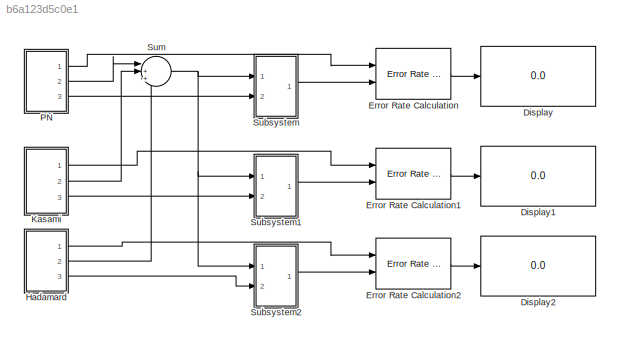
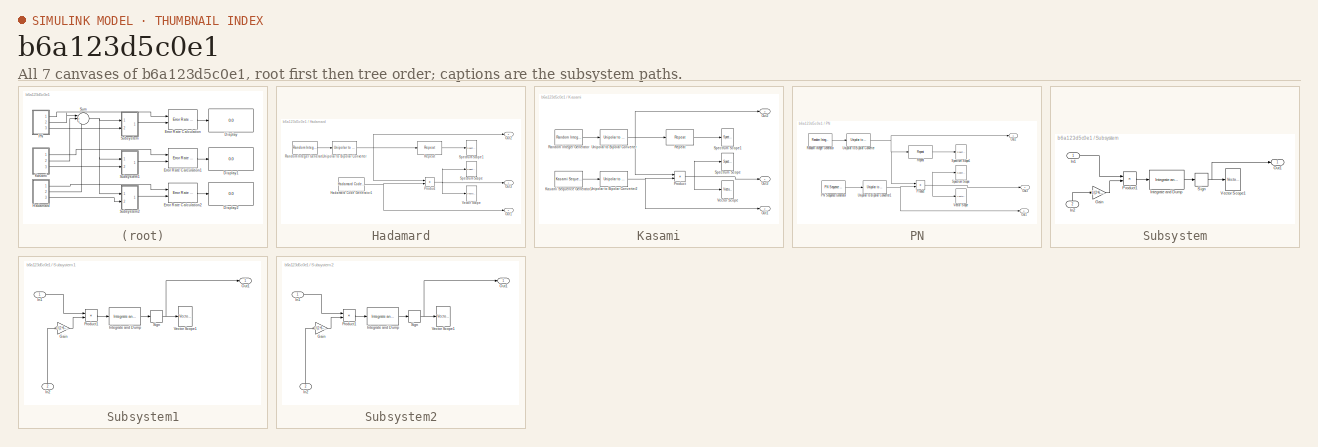
[diagram: thumbnail index - all 7 canvases of the model, root first then tree order]
MODEL slx_b6a123d5c0e1
KIND model
BLOCK [Display] Display
  Decimation = 1
  Lockdown = off
  Ports = [1]
BLOCK [Display] Display1
  Decimation = 1
  Lockdown = off
  Ports = [1]
BLOCK [Display] Display2
  Decimation = 1
  Lockdown = off
  Ports = [1]
BLOCK [Reference] Error Rate Calculation  REF=commsink2/Error Rate
Calculation
  N = 1
  PMode = Port
  Ports = [2, 1]
  RsMode2 = off
  SourceBlock = commsink2/Error Rate\nCalculation
  SourceType = Error Rate Calculation
  WsName = ErrorVec
  cp_mode = Entire frame
  maxBits = 1e6
  numErr = 100
  st_delay = 0
  stop = off
  subframe = []
BLOCK [Reference] Error Rate Calculation1  REF=commsink2/Error Rate
Calculation
  N = 1
  PMode = Port
  Ports = [2, 1]
  RsMode2 = off
  SourceBlock = commsink2/Error Rate\nCalculation
  SourceType = Error Rate Calculation
  WsName = ErrorVec
  cp_mode = Entire frame
  maxBits = 1e6
  numErr = 100
  st_delay = 0
  stop = off
  subframe = []
BLOCK [Reference] Error Rate Calculation2  REF=commsink2/Error Rate
Calculation
  N = 1
  PMode = Port
  Ports = [2, 1]
  RsMode2 = off
  SourceBlock = commsink2/Error Rate\nCalculation
  SourceType = Error Rate Calculation
  WsName = ErrorVec
  cp_mode = Entire frame
  maxBits = 1e6
  numErr = 100
  st_delay = 0
  stop = off
  subframe = []
BLOCK [SubSystem] Hadamard
  FunctionWithSeparateData = off
  MaskHideContents = off
  MinAlgLoopOccurrences = off
  Opaque = off
  Ports = [0, 3]
  PropExecContextOutsideSubsystem = off
  RTWSystemCode = Auto
  RequestExecContextInheritance = off
BLOCK [Reference] Hadamard/Hadamard Code Generator1  REF=commseqgen2/Hadamard
Code Generator
  Ports = [0, 1]
  SourceBlock = commseqgen2/Hadamard\nCode Generator
  SourceType = Hadamard Code Generator
  frameBased = off
  index = 52
  length = 128
  outDataType = double
  sampPerFrame = 128
  ts = 10^-6/128
BLOCK [Outport] Hadamard/Out1
  IconDisplay = Port number
  Port = 2
BLOCK [Outport] Hadamard/Out2
  IconDisplay = Port number
  Port = 3
BLOCK [Outport] Hadamard/Out3
  IconDisplay = Port number
BLOCK [Product] Hadamard/Product
  InputSameDT = off
  OutDataTypeStr = Inherit: Inherit via internal rule
  Ports = [2, 1]
  SaturateOnIntegerOverflow = off
BLOCK [Reference] Hadamard/Random Integer Generator  REF=commrandsrc2/Random Integer
Generator
  Ports = [0, 1]
  SourceBlock = commrandsrc2/Random Integer\nGenerator
  SourceType = Random Integer Generator
  Ts = 10^-6
  frameBased = off
  mul = 2
  orient = off
  outDataType = double
  sampPerFrame = 1
  seed = 41
BLOCK [Reference] Hadamard/Repeat  REF=dspsigops/Repeat
  InputProcessing = Columns as channels (frame based)
  N = 2^6-1
  Ports = [1, 1]
  RateOptions = Allow multirate processing
  SourceBlock = dspsigops/Repeat
  SourceType = Repeat
  UserDataPersistent = on
  ic = 0
  mode = Unused parameter value
BLOCK [Reference] Hadamard/Spectrum Scope  REF=dspsnks4/Spectrum
Scope
  AxisGrid = on
  AxisLegend = off
  AxisProperties = off
  AxisZoom = off
  BufferSize = 128
  DisplayProperties = off
  Domain = Frequency
  FFTlength = 128
  FigPos = get(0,'defaultfigureposition')
  FrameNumber = on
  HorizSpan = 1
  InheritXIncr = on
  LineProperties = off
  Memory = off
  OpenScopeAtSimStart = on
  OpenScopeImmediately = off
  Overlap = 0
  Ports = [1]
  RsSpecScope = 50
  ScopeProperties = on
  SourceBlock = dspsnks4/Spectrum\nScope
  SourceType = Spectrum Scope
  TreatMby1Signals = One channel
  UseBuffer = on
  XAxisParamsVer = 6.9
  XDisplay = 0
  XIncr = 1.0
  XLabel = Samples
  XLimit = Auto
  XMax = 1
  XMin = 0
  XRange = Two-sided ((-Fs/2...Fs/2])
  XUnits = Hertz
  YLabel = Magnitude-squared, dB
  YMax = 10
  YMin = -10
  YUnits = dBW/Hertz
  betaSpecScope = 5
  inpFftLenInherit = on
  isFrameUpgraded = on
  numAvg = 20
  winsampSpecScope = Periodic
  wintypeSpecScope = Hann
BLOCK [Reference] Hadamard/Spectrum Scope1  REF=dspsnks4/Spectrum
Scope
  AxisGrid = on
  AxisLegend = off
  AxisProperties = off
  AxisZoom = off
  BufferSize = 128
  DisplayProperties = off
  Domain = Frequency
  FFTlength = 128
  FigPos = get(0,'defaultfigureposition')
  FrameNumber = on
  HorizSpan = 1
  InheritXIncr = on
  LineProperties = off
  Memory = off
  OpenScopeAtSimStart = on
  OpenScopeImmediately = off
  Overlap = 0
  Ports = [1]
  RsSpecScope = 50
  ScopeProperties = on
  SourceBlock = dspsnks4/Spectrum\nScope
  SourceType = Spectrum Scope
  TreatMby1Signals = One channel
  UseBuffer = on
  XAxisParamsVer = 6.9
  XDisplay = 0
  XIncr = 1.0
  XLabel = Samples
  XLimit = Auto
  XMax = 1
  XMin = 0
  XRange = Two-sided ((-Fs/2...Fs/2])
  XUnits = Hertz
  YLabel = Magnitude-squared, dB
  YMax = 10
  YMin = -10
  YUnits = dBW/Hertz
  betaSpecScope = 5
  inpFftLenInherit = on
  isFrameUpgraded = on
  numAvg = 20
  winsampSpecScope = Periodic
  wintypeSpecScope = Hann
BLOCK [Reference] Hadamard/Unipolar to Bipolar Converter  REF=commutil2/Unipolar to
Bipolar
Converter
  M = 2
  Ports = [1, 1]
  SourceBlock = commutil2/Unipolar to\nBipolar\nConverter
  SourceType = Unipolar to Bipolar Converter
  dataType = Inherit via internal rule
  polarity = Positive
BLOCK [Reference] Hadamard/Vector Scope  REF=dspsnks4/Vector
Scope
  AxisGrid = on
  AxisLegend = off
  AxisProperties = off
  AxisZoom = off
  DisplayProperties = off
  Domain = Time
  FigPos = get(0,'defaultfigureposition')
  FrameNumber = on
  HorizSpan = 3*((2^6)-1)
  InheritXIncr = on
  LineMarkers = o
  LineProperties = off
  LineStyles = None
  Memory = off
  OpenScopeAtSimStart = on
  OpenScopeImmediately = off
  Ports = [1]
  ScopeProperties = on
  ShowPortLabels = off
  SourceBlock = dspsnks4/Vector\nScope
  SourceType = Vector Scope
  XAxisParamsVer = 6.9
  XIncr = 1
  XLabel = Time
  XLimit = Auto
  XMax = 1
  XMin = 0
  XRange = [0...Fs/2]
  XStart = 0
  XUnits = Hertz
  YLabel = Amplitude
  YMax = 10
  YMin = -10
  YUnits = dB
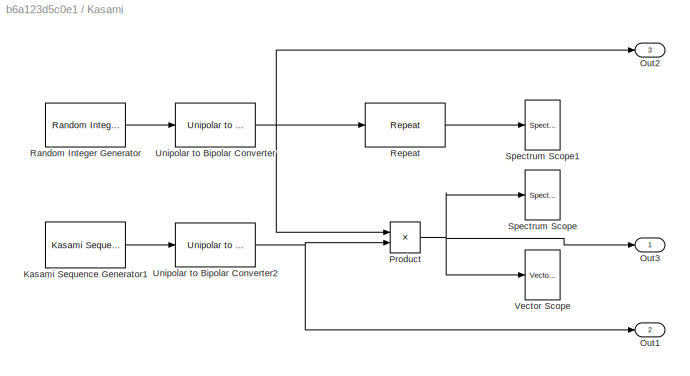
BLOCK [SubSystem] Kasami
  FunctionWithSeparateData = off
  MaskHideContents = off
  MinAlgLoopOccurrences = off
  Opaque = off
  Ports = [0, 3]
  PropExecContextOutsideSubsystem = off
  RTWSystemCode = Auto
  RequestExecContextInheritance = off
BLOCK [Reference] Kasami/Kasami Sequence Generator1  REF=commseqgen2/Kasami
Sequence
Generator
  Commented = on
  Ports = [0, 1]
  SourceBlock = commseqgen2/Kasami\nSequence\nGenerator
  SourceType = Kasami Sequence Generator
  codeIdx = 1
  frameBased = off
  genPoly = [1 0 0 0 0 1 1]
  iniState = [0 0 0 0 0 1]
  maxOutSize = [10 1]
  maxOutSizeMode = Dialog parameter
  outDataType = double
  outVarSiz = off
  reset = off
  sampPerFrame = 1
  shift = 0
  ts = 1
BLOCK [Outport] Kasami/Out1
  IconDisplay = Port number
  Port = 2
BLOCK [Outport] Kasami/Out2
  IconDisplay = Port number
  Port = 3
BLOCK [Outport] Kasami/Out3
  IconDisplay = Port number
BLOCK [Product] Kasami/Product
  InputSameDT = off
  OutDataTypeStr = Inherit: Inherit via internal rule
  Ports = [2, 1]
  SaturateOnIntegerOverflow = off
BLOCK [Reference] Kasami/Random Integer Generator  REF=commrandsrc2/Random Integer
Generator
  Ports = [0, 1]
  SourceBlock = commrandsrc2/Random Integer\nGenerator
  SourceType = Random Integer Generator
  Ts = 10^-6
  frameBased = off
  mul = 2
  orient = off
  outDataType = double
  sampPerFrame = 1
  seed = 41
BLOCK [Reference] Kasami/Repeat  REF=dspsigops/Repeat
  InputProcessing = Columns as channels (frame based)
  N = 2^6-1
  Ports = [1, 1]
  RateOptions = Allow multirate processing
  SourceBlock = dspsigops/Repeat
  SourceType = Repeat
  UserDataPersistent = on
  ic = 0
  mode = Unused parameter value
BLOCK [Reference] Kasami/Spectrum Scope  REF=dspsnks4/Spectrum
Scope
  AxisGrid = on
  AxisLegend = off
  AxisProperties = off
  AxisZoom = off
  BufferSize = 128
  DisplayProperties = off
  Domain = Frequency
  FFTlength = 128
  FigPos = get(0,'defaultfigureposition')
  FrameNumber = on
  HorizSpan = 1
  InheritXIncr = on
  LineProperties = off
  Memory = off
  OpenScopeAtSimStart = on
  OpenScopeImmediately = off
  Overlap = 0
  Ports = [1]
  RsSpecScope = 50
  ScopeProperties = on
  SourceBlock = dspsnks4/Spectrum\nScope
  SourceType = Spectrum Scope
  TreatMby1Signals = One channel
  UseBuffer = on
  XAxisParamsVer = 6.9
  XDisplay = 0
  XIncr = 1.0
  XLabel = Samples
  XLimit = Auto
  XMax = 1
  XMin = 0
  XRange = Two-sided ((-Fs/2...Fs/2])
  XUnits = Hertz
  YLabel = Magnitude-squared, dB
  YMax = 10
  YMin = -10
  YUnits = dBW/Hertz
  betaSpecScope = 5
  inpFftLenInherit = on
  isFrameUpgraded = on
  numAvg = 20
  winsampSpecScope = Periodic
  wintypeSpecScope = Hann
BLOCK [Reference] Kasami/Spectrum Scope1  REF=dspsnks4/Spectrum
Scope
  AxisGrid = on
  AxisLegend = off
  AxisProperties = off
  AxisZoom = off
  BufferSize = 128
  DisplayProperties = off
  Domain = Frequency
  FFTlength = 128
  FigPos = get(0,'defaultfigureposition')
  FrameNumber = on
  HorizSpan = 1
  InheritXIncr = on
  LineProperties = off
  Memory = off
  OpenScopeAtSimStart = on
  OpenScopeImmediately = off
  Overlap = 0
  Ports = [1]
  RsSpecScope = 50
  ScopeProperties = on
  SourceBlock = dspsnks4/Spectrum\nScope
  SourceType = Spectrum Scope
  TreatMby1Signals = One channel
  UseBuffer = on
  XAxisParamsVer = 6.9
  XDisplay = 0
  XIncr = 1.0
  XLabel = Samples
  XLimit = Auto
  XMax = 1
  XMin = 0
  XRange = Two-sided ((-Fs/2...Fs/2])
  XUnits = Hertz
  YLabel = Magnitude-squared, dB
  YMax = 10
  YMin = -10
  YUnits = dBW/Hertz
  betaSpecScope = 5
  inpFftLenInherit = on
  isFrameUpgraded = on
  numAvg = 20
  winsampSpecScope = Periodic
  wintypeSpecScope = Hann
BLOCK [Reference] Kasami/Unipolar to Bipolar Converter  REF=commutil2/Unipolar to
Bipolar
Converter
  M = 2
  Ports = [1, 1]
  SourceBlock = commutil2/Unipolar to\nBipolar\nConverter
  SourceType = Unipolar to Bipolar Converter
  dataType = Inherit via internal rule
  polarity = Positive
BLOCK [Reference] Kasami/Unipolar to Bipolar Converter2  REF=commutil2/Unipolar to
Bipolar
Converter
  Commented = on
  M = 2
  Ports = [1, 1]
  SourceBlock = commutil2/Unipolar to\nBipolar\nConverter
  SourceType = Unipolar to Bipolar Converter
  dataType = Inherit via internal rule
  polarity = Positive
BLOCK [Reference] Kasami/Vector Scope  REF=dspsnks4/Vector
Scope
  AxisGrid = on
  AxisLegend = off
  AxisProperties = off
  AxisZoom = off
  DisplayProperties = off
  Domain = Time
  FigPos = get(0,'defaultfigureposition')
  FrameNumber = on
  HorizSpan = 3*((2^6)-1)
  InheritXIncr = on
  LineMarkers = o
  LineProperties = off
  LineStyles = None
  Memory = off
  OpenScopeAtSimStart = on
  OpenScopeImmediately = off
  Ports = [1]
  ScopeProperties = on
  ShowPortLabels = off
  SourceBlock = dspsnks4/Vector\nScope
  SourceType = Vector Scope
  XAxisParamsVer = 6.9
  XIncr = 1
  XLabel = Time
  XLimit = Auto
  XMax = 1
  XMin = 0
  XRange = [0...Fs/2]
  XStart = 0
  XUnits = Hertz
  YLabel = Amplitude
  YMax = 10
  YMin = -10
  YUnits = dB
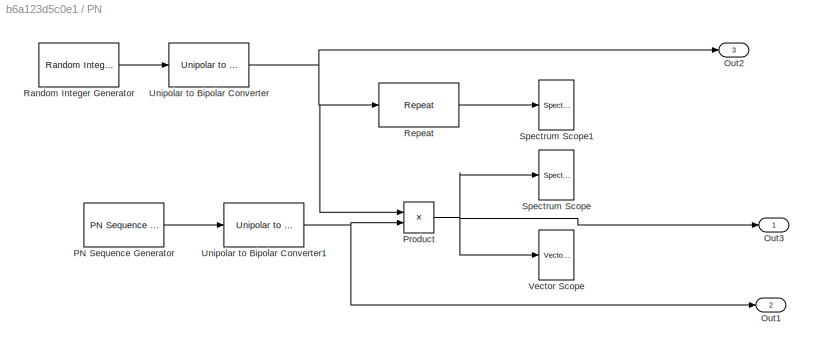
BLOCK [SubSystem] PN
  FunctionWithSeparateData = off
  MaskHideContents = off
  MinAlgLoopOccurrences = off
  Opaque = off
  Ports = [0, 3]
  PropExecContextOutsideSubsystem = off
  RTWSystemCode = Auto
  RequestExecContextInheritance = off
BLOCK [Outport] PN/Out1
  IconDisplay = Port number
  Port = 2
BLOCK [Outport] PN/Out2
  IconDisplay = Port number
  Port = 3
BLOCK [Outport] PN/Out3
  IconDisplay = Port number
BLOCK [Reference] PN/PN Sequence Generator  REF=commseqgen2/PN Sequence
Generator
  Ports = [0, 1]
  SourceBlock = commseqgen2/PN Sequence\nGenerator
  SourceType = PN Sequence Generator
  Ts = (10^-6)/((2^6)-1)
  bitPackDataSigned = off
  bitPackedOutDType = double
  bitPackedOutputs = off
  frameBased = off
  ini_sta = [0 0 0 0 0 1]
  maxOutSize = [10 1]
  maxOutSizeMode = Dialog parameter
  numPackedBits = 8
  outBitMaskSource = Dialog parameter
  outDataType = double
  outVarSiz = off
  poly = [1 1 0 0 0 0 1]
  reset = off
  sampPerFrame = 1
  shift = 0
BLOCK [Product] PN/Product
  InputSameDT = off
  OutDataTypeStr = Inherit: Inherit via internal rule
  Ports = [2, 1]
  SaturateOnIntegerOverflow = off
BLOCK [Reference] PN/Random Integer Generator  REF=commrandsrc2/Random Integer
Generator
  Ports = [0, 1]
  SourceBlock = commrandsrc2/Random Integer\nGenerator
  SourceType = Random Integer Generator
  Ts = 10^-6
  frameBased = off
  mul = 2
  orient = off
  outDataType = double
  sampPerFrame = 1
  seed = 41
BLOCK [Reference] PN/Repeat  REF=dspsigops/Repeat
  InputProcessing = Columns as channels (frame based)
  N = 2^6-1
  Ports = [1, 1]
  RateOptions = Allow multirate processing
  SourceBlock = dspsigops/Repeat
  SourceType = Repeat
  UserDataPersistent = on
  ic = 0
  mode = Unused parameter value
BLOCK [Reference] PN/Spectrum Scope  REF=dspsnks4/Spectrum
Scope
  AxisGrid = on
  AxisLegend = off
  AxisProperties = off
  AxisZoom = off
  BufferSize = 128
  DisplayProperties = off
  Domain = Frequency
  FFTlength = 128
  FigPos = get(0,'defaultfigureposition')
  FrameNumber = on
  HorizSpan = 1
  InheritXIncr = on
  LineProperties = off
  Memory = off
  OpenScopeAtSimStart = on
  OpenScopeImmediately = off
  Overlap = 0
  Ports = [1]
  RsSpecScope = 50
  ScopeProperties = on
  SourceBlock = dspsnks4/Spectrum\nScope
  SourceType = Spectrum Scope
  TreatMby1Signals = One channel
  UseBuffer = on
  XAxisParamsVer = 6.9
  XDisplay = 0
  XIncr = 1.0
  XLabel = Samples
  XLimit = Auto
  XMax = 1
  XMin = 0
  XRange = Two-sided ((-Fs/2...Fs/2])
  XUnits = Hertz
  YLabel = Magnitude-squared, dB
  YMax = 10
  YMin = -10
  YUnits = dBW/Hertz
  betaSpecScope = 5
  inpFftLenInherit = on
  isFrameUpgraded = on
  numAvg = 20
  winsampSpecScope = Periodic
  wintypeSpecScope = Hann
BLOCK [Reference] PN/Spectrum Scope1  REF=dspsnks4/Spectrum
Scope
  AxisGrid = on
  AxisLegend = off
  AxisProperties = off
  AxisZoom = off
  BufferSize = 128
  DisplayProperties = off
  Domain = Frequency
  FFTlength = 128
  FigPos = get(0,'defaultfigureposition')
  FrameNumber = on
  HorizSpan = 1
  InheritXIncr = on
  LineProperties = off
  Memory = off
  OpenScopeAtSimStart = on
  OpenScopeImmediately = off
  Overlap = 0
  Ports = [1]
  RsSpecScope = 50
  ScopeProperties = on
  SourceBlock = dspsnks4/Spectrum\nScope
  SourceType = Spectrum Scope
  TreatMby1Signals = One channel
  UseBuffer = on
  XAxisParamsVer = 6.9
  XDisplay = 0
  XIncr = 1.0
  XLabel = Samples
  XLimit = Auto
  XMax = 1
  XMin = 0
  XRange = Two-sided ((-Fs/2...Fs/2])
  XUnits = Hertz
  YLabel = Magnitude-squared, dB
  YMax = 10
  YMin = -10
  YUnits = dBW/Hertz
  betaSpecScope = 5
  inpFftLenInherit = on
  isFrameUpgraded = on
  numAvg = 20
  winsampSpecScope = Periodic
  wintypeSpecScope = Hann
BLOCK [Reference] PN/Unipolar to Bipolar Converter  REF=commutil2/Unipolar to
Bipolar
Converter
  M = 2
  Ports = [1, 1]
  SourceBlock = commutil2/Unipolar to\nBipolar\nConverter
  SourceType = Unipolar to Bipolar Converter
  dataType = Inherit via internal rule
  polarity = Positive
BLOCK [Reference] PN/Unipolar to Bipolar Converter1  REF=commutil2/Unipolar to
Bipolar
Converter
  M = 2
  Ports = [1, 1]
  SourceBlock = commutil2/Unipolar to\nBipolar\nConverter
  SourceType = Unipolar to Bipolar Converter
  dataType = Inherit via internal rule
  polarity = Positive
BLOCK [Reference] PN/Vector Scope  REF=dspsnks4/Vector
Scope
  AxisGrid = on
  AxisLegend = off
  AxisProperties = off
  AxisZoom = off
  DisplayProperties = off
  Domain = Time
  FigPos = get(0,'defaultfigureposition')
  FrameNumber = on
  HorizSpan = 3*((2^6)-1)
  InheritXIncr = on
  LineMarkers = o
  LineProperties = off
  LineStyles = None
  Memory = off
  OpenScopeAtSimStart = on
  OpenScopeImmediately = off
  Ports = [1]
  ScopeProperties = on
  ShowPortLabels = off
  SourceBlock = dspsnks4/Vector\nScope
  SourceType = Vector Scope
  XAxisParamsVer = 6.9
  XIncr = 1
  XLabel = Time
  XLimit = Auto
  XMax = 1
  XMin = 0
  XRange = [0...Fs/2]
  XStart = 0
  XUnits = Hertz
  YLabel = Amplitude
  YMax = 10
  YMin = -10
  YUnits = dB
BLOCK [SubSystem] Subsystem
  Commented = on
  FunctionWithSeparateData = off
  MaskHideContents = off
  MinAlgLoopOccurrences = off
  Opaque = off
  Ports = [2, 1]
  PropExecContextOutsideSubsystem = off
  RTWSystemCode = Auto
  RequestExecContextInheritance = off
BLOCK [Gain] Subsystem/Gain
  Gain = 1/(2^6-1)
  OutDataTypeStr = Inherit: Inherit via internal rule
  ParamDataTypeStr = Inherit: Inherit via internal rule
  SaturateOnIntegerOverflow = off
BLOCK [Inport] Subsystem/In1
  IconDisplay = Port number
BLOCK [Inport] Subsystem/In2
  IconDisplay = Port number
  Port = 2
BLOCK [Reference] Subsystem/Integrate and Dump  REF=commfilt2/Integrate
and Dump
  LockScale = off
  Ports = [1, 1]
  SourceBlock = commfilt2/Integrate\nand Dump
  SourceType = Integrate and Dump
  accumFracLength = 30
  accumMode = Inherit via internal rule
  accumWordLength = 32
  nodump = off
  obssamples = 63
  offsetsamples = 0
  outputFracLength = 30
  outputMode = Same as accumulator
  outputWordLength = 32
  overflowMode = off
  roundingMode = Floor
BLOCK [Outport] Subsystem/Out1
  IconDisplay = Port number
BLOCK [Product] Subsystem/Product1
  InputSameDT = off
  OutDataTypeStr = Inherit: Inherit via internal rule
  Ports = [2, 1]
  SaturateOnIntegerOverflow = off
BLOCK [Signum] Subsystem/Sign
  ZeroCross = off
BLOCK [Reference] Subsystem/Vector Scope1  REF=dspsnks4/Vector
Scope
  AxisGrid = on
  AxisLegend = off
  AxisProperties = off
  AxisZoom = off
  DisplayProperties = off
  Domain = Time
  FigPos = get(0,'defaultfigureposition')
  FrameNumber = on
  HorizSpan = 3*((2^6)-1)
  InheritXIncr = on
  LineColors = b
  LineMarkers = o
  LineProperties = off
  LineStyles = None
  Memory = off
  OpenScopeAtSimStart = on
  OpenScopeImmediately = off
  Ports = [1]
  ScopeProperties = on
  ShowPortLabels = off
  SourceBlock = dspsnks4/Vector\nScope
  SourceType = Vector Scope
  XAxisParamsVer = 6.9
  XIncr = 1
  XLabel = Time
  XLimit = Auto
  XMax = 1
  XMin = 0
  XRange = [0...Fs/2]
  XStart = 0
  XUnits = Hertz
  YLabel = Amplitude
  YMax = 10
  YMin = -10
  YUnits = dB
BLOCK [SubSystem] Subsystem1
  FunctionWithSeparateData = off
  MaskHideContents = off
  MinAlgLoopOccurrences = off
  Opaque = off
  Ports = [2, 1]
  PropExecContextOutsideSubsystem = off
  RTWSystemCode = Auto
  RequestExecContextInheritance = off
BLOCK [Gain] Subsystem1/Gain
  Gain = 1/(2^6-1)
  OutDataTypeStr = Inherit: Inherit via internal rule
  ParamDataTypeStr = Inherit: Inherit via internal rule
  SaturateOnIntegerOverflow = off
BLOCK [Inport] Subsystem1/In1
  IconDisplay = Port number
BLOCK [Inport] Subsystem1/In2
  IconDisplay = Port number
  Port = 2
BLOCK [Reference] Subsystem1/Integrate and Dump  REF=commfilt2/Integrate
and Dump
  LockScale = off
  Ports = [1, 1]
  SourceBlock = commfilt2/Integrate\nand Dump
  SourceType = Integrate and Dump
  accumFracLength = 30
  accumMode = Inherit via internal rule
  accumWordLength = 32
  nodump = off
  obssamples = 63
  offsetsamples = 0
  outputFracLength = 30
  outputMode = Same as accumulator
  outputWordLength = 32
  overflowMode = off
  roundingMode = Floor
BLOCK [Outport] Subsystem1/Out1
  IconDisplay = Port number
BLOCK [Product] Subsystem1/Product1
  InputSameDT = off
  OutDataTypeStr = Inherit: Inherit via internal rule
  Ports = [2, 1]
  SaturateOnIntegerOverflow = off
BLOCK [Signum] Subsystem1/Sign
  ZeroCross = off
BLOCK [Reference] Subsystem1/Vector Scope1  REF=dspsnks4/Vector
Scope
  AxisGrid = on
  AxisLegend = off
  AxisProperties = off
  AxisZoom = off
  DisplayProperties = off
  Domain = Time
  FigPos = get(0,'defaultfigureposition')
  FrameNumber = on
  HorizSpan = 3*((2^6)-1)
  InheritXIncr = on
  LineColors = b
  LineMarkers = o
  LineProperties = off
  LineStyles = None
  Memory = off
  OpenScopeAtSimStart = on
  OpenScopeImmediately = off
  Ports = [1]
  ScopeProperties = on
  ShowPortLabels = off
  SourceBlock = dspsnks4/Vector\nScope
  SourceType = Vector Scope
  XAxisParamsVer = 6.9
  XIncr = 1
  XLabel = Time
  XLimit = Auto
  XMax = 1
  XMin = 0
  XRange = [0...Fs/2]
  XStart = 0
  XUnits = Hertz
  YLabel = Amplitude
  YMax = 10
  YMin = -10
  YUnits = dB
BLOCK [SubSystem] Subsystem2
  FunctionWithSeparateData = off
  MaskHideContents = off
  MinAlgLoopOccurrences = off
  Opaque = off
  Ports = [2, 1]
  PropExecContextOutsideSubsystem = off
  RTWSystemCode = Auto
  RequestExecContextInheritance = off
BLOCK [Gain] Subsystem2/Gain
  Gain = 1/(2^6-1)
  OutDataTypeStr = Inherit: Inherit via internal rule
  ParamDataTypeStr = Inherit: Inherit via internal rule
  SaturateOnIntegerOverflow = off
BLOCK [Inport] Subsystem2/In1
  IconDisplay = Port number
BLOCK [Inport] Subsystem2/In2
  IconDisplay = Port number
  Port = 2
BLOCK [Reference] Subsystem2/Integrate and Dump  REF=commfilt2/Integrate
and Dump
  LockScale = off
  Ports = [1, 1]
  SourceBlock = commfilt2/Integrate\nand Dump
  SourceType = Integrate and Dump
  accumFracLength = 30
  accumMode = Inherit via internal rule
  accumWordLength = 32
  nodump = off
  obssamples = 128
  offsetsamples = 0
  outputFracLength = 30
  outputMode = Same as accumulator
  outputWordLength = 32
  overflowMode = off
  roundingMode = Floor
BLOCK [Outport] Subsystem2/Out1
  IconDisplay = Port number
BLOCK [Product] Subsystem2/Product1
  InputSameDT = off
  OutDataTypeStr = Inherit: Inherit via internal rule
  Ports = [2, 1]
  SaturateOnIntegerOverflow = off
BLOCK [Signum] Subsystem2/Sign
  ZeroCross = off
BLOCK [Reference] Subsystem2/Vector Scope1  REF=dspsnks4/Vector
Scope
  AxisGrid = on
  AxisLegend = off
  AxisProperties = off
  AxisZoom = off
  DisplayProperties = off
  Domain = Time
  FigPos = get(0,'defaultfigureposition')
  FrameNumber = on
  HorizSpan = 3*((2^6)-1)
  InheritXIncr = on
  LineColors = b
  LineMarkers = o
  LineProperties = off
  LineStyles = None
  Memory = off
  OpenScopeAtSimStart = on
  OpenScopeImmediately = off
  Ports = [1]
  ScopeProperties = on
  ShowPortLabels = off
  SourceBlock = dspsnks4/Vector\nScope
  SourceType = Vector Scope
  XAxisParamsVer = 6.9
  XIncr = 1
  XLabel = Time
  XLimit = Auto
  XMax = 1
  XMin = 0
  XRange = [0...Fs/2]
  XStart = 0
  XUnits = Hertz
  YLabel = Amplitude
  YMax = 10
  YMin = -10
  YUnits = dB
BLOCK [Sum] Sum
  IconShape = round
  InputSameDT = off
  Inputs = |+++
  OutDataTypeStr = Inherit: Inherit via internal rule
  Ports = [3, 1]
  SaturateOnIntegerOverflow = off
LINE Error Rate Calculation1:1 -> Display1:1
LINE Error Rate Calculation2:1 -> Display2:1
LINE Error Rate Calculation:1 -> Display:1
NET Hadamard/Hadamard Code Generator1:1 -> Hadamard/Out1:1, Hadamard/Product:2
NET Hadamard/Product:1 -> Hadamard/Out3:1, Hadamard/Spectrum Scope:1, Hadamard/Vector Scope:1
LINE Hadamard/Random Integer Generator:1 -> Hadamard/Unipolar to Bipolar Converter:1
LINE Hadamard/Repeat:1 -> Hadamard/Spectrum Scope1:1
NET Hadamard/Unipolar to Bipolar Converter:1 -> Hadamard/Out2:1, Hadamard/Product:1, Hadamard/Repeat:1
LINE Hadamard:1 -> Error Rate Calculation2:1
LINE Hadamard:2 -> Sum:3
LINE Hadamard:3 -> Subsystem2:2
LINE Kasami/Kasami Sequence Generator1:1 -> Kasami/Unipolar to Bipolar Converter2:1
NET Kasami/Product:1 -> Kasami/Out3:1, Kasami/Spectrum Scope:1, Kasami/Vector Scope:1
LINE Kasami/Random Integer Generator:1 -> Kasami/Unipolar to Bipolar Converter:1
LINE Kasami/Repeat:1 -> Kasami/Spectrum Scope1:1
NET Kasami/Unipolar to Bipolar Converter2:1 -> Kasami/Out1:1, Kasami/Product:2
NET Kasami/Unipolar to Bipolar Converter:1 -> Kasami/Out2:1, Kasami/Product:1, Kasami/Repeat:1
LINE Kasami:1 -> Error Rate Calculation1:1
LINE Kasami:2 -> Sum:2
LINE Kasami:3 -> Subsystem1:2
LINE PN/PN Sequence Generator:1 -> PN/Unipolar to Bipolar Converter1:1
NET PN/Product:1 -> PN/Out3:1, PN/Spectrum Scope:1, PN/Vector Scope:1
LINE PN/Random Integer Generator:1 -> PN/Unipolar to Bipolar Converter:1
LINE PN/Repeat:1 -> PN/Spectrum Scope1:1
NET PN/Unipolar to Bipolar Converter1:1 -> PN/Out1:1, PN/Product:2
NET PN/Unipolar to Bipolar Converter:1 -> PN/Out2:1, PN/Product:1, PN/Repeat:1
LINE PN:1 -> Error Rate Calculation:1
LINE PN:2 -> Sum:1
LINE PN:3 -> Subsystem:2
LINE Subsystem/Gain:1 -> Subsystem/Product1:2
LINE Subsystem/In1:1 -> Subsystem/Product1:1
LINE Subsystem/In2:1 -> Subsystem/Gain:1
LINE Subsystem/Integrate and Dump:1 -> Subsystem/Sign:1
LINE Subsystem/Product1:1 -> Subsystem/Integrate and Dump:1
NET Subsystem/Sign:1 -> Subsystem/Out1:1, Subsystem/Vector Scope1:1
LINE Subsystem1/Gain:1 -> Subsystem1/Product1:2
LINE Subsystem1/In1:1 -> Subsystem1/Product1:1
LINE Subsystem1/In2:1 -> Subsystem1/Gain:1
LINE Subsystem1/Integrate and Dump:1 -> Subsystem1/Sign:1
LINE Subsystem1/Product1:1 -> Subsystem1/Integrate and Dump:1
NET Subsystem1/Sign:1 -> Subsystem1/Out1:1, Subsystem1/Vector Scope1:1
LINE Subsystem1:1 -> Error Rate Calculation1:2
LINE Subsystem2/Gain:1 -> Subsystem2/Product1:2
LINE Subsystem2/In1:1 -> Subsystem2/Product1:1
LINE Subsystem2/In2:1 -> Subsystem2/Gain:1
LINE Subsystem2/Integrate and Dump:1 -> Subsystem2/Sign:1
LINE Subsystem2/Product1:1 -> Subsystem2/Integrate and Dump:1
NET Subsystem2/Sign:1 -> Subsystem2/Out1:1, Subsystem2/Vector Scope1:1
LINE Subsystem2:1 -> Error Rate Calculation2:2
LINE Subsystem:1 -> Error Rate Calculation:2
NET Sum:1 -> Subsystem1:1, Subsystem2:1, Subsystem:1
note: NET lines group one-source signal fan-out (src -> all destinations, sorted); 1:1 wires keep LINE
